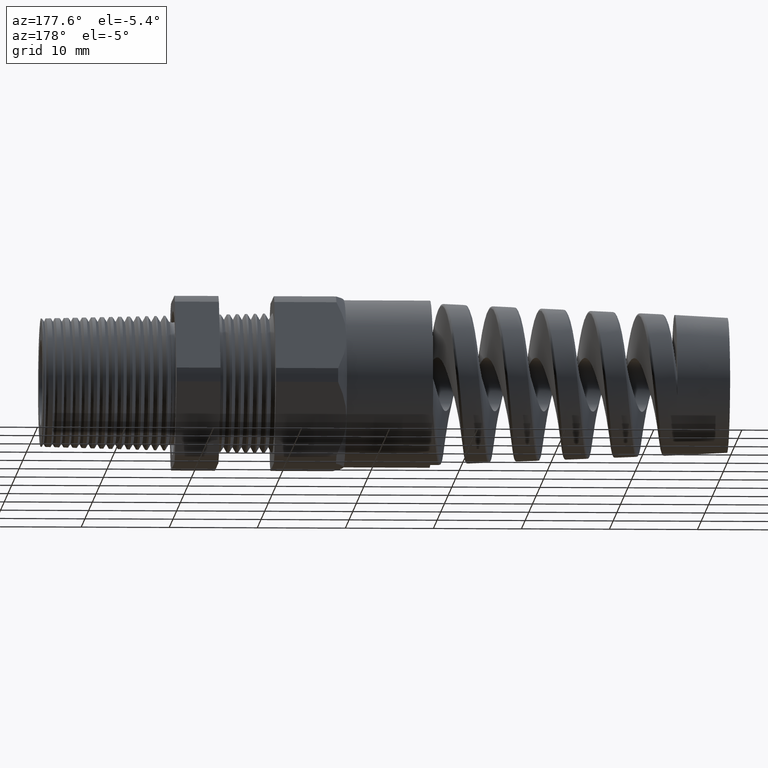
[diagram: clean part render]
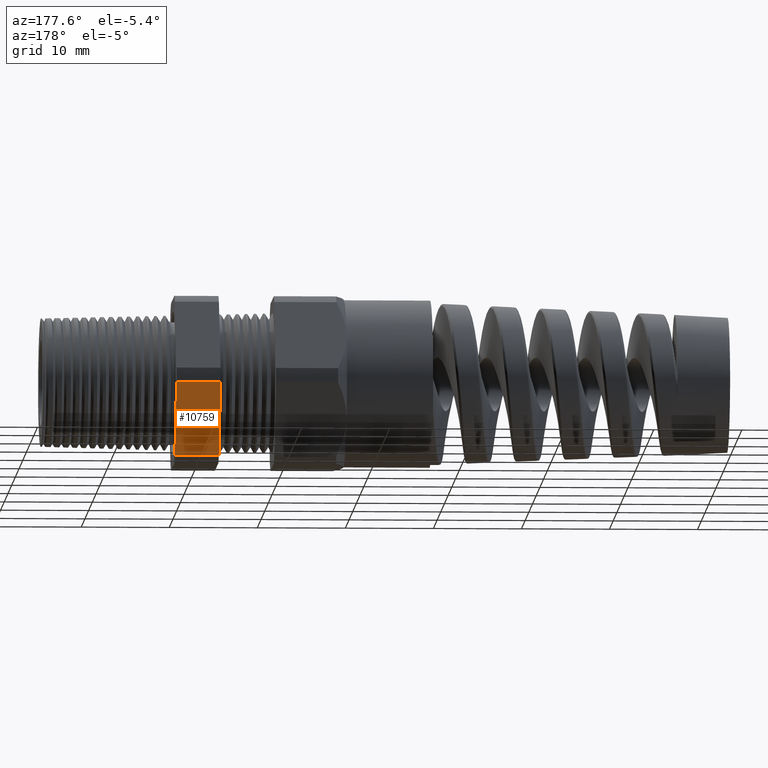
[diagram: same view with one face highlighted and labeled with its STEP entity id]
A machine part, auxiliary view. The second image highlights one B-rep face of the part: STEP entity #10759.
In plain terms, the highlighted planar face has unit normal (0, 0.866, -0.5).
Its self-contained STEP definition (entity closure, byte-faithful):
#32 = VERTEX_POINT ( 'NONE', #962 ) ;
#37 = VERTEX_POINT ( 'NONE', #951 ) ;
#951 = CARTESIAN_POINT ( 'NONE',  ( -0.3100000000000000000, 0.2344281053908204300, -0.3439586107409878200 ) ) ;
#962 = CARTESIAN_POINT ( 'NONE',  ( -0.3100000000000000000, 0.4150909474475088000, -0.03104138925901213400 ) ) ;
#3374 = CARTESIAN_POINT ( 'NONE',  ( -0.5068503937007874400, 0.2344281053908204300, -0.3439586107409878200 ) ) ;
#3380 = DIRECTION ( 'NONE',  ( 0.0000000000000000000, -0.4999999999999998300, -0.8660254037844386000 ) ) ;
#3381 = VECTOR ( 'NONE', #3380, 39.37007874015748900 ) ;
#3382 = CARTESIAN_POINT ( 'NONE',  ( -0.5068503937007874400, 0.5122595264191645000, 0.1372595264191644700 ) ) ;
#3383 = LINE ( 'NONE', #3382, #3381 ) ;
#3385 = CARTESIAN_POINT ( 'NONE',  ( -0.5068503937007874400, 0.4150909474475088000, -0.03104138925901210900 ) ) ;
#4239 = VERTEX_POINT ( 'NONE', #3385 ) ;
#4246 = EDGE_CURVE ( 'NONE', #4239, #4248, #3383, .T. ) ;
#4248 = VERTEX_POINT ( 'NONE', #3374 ) ;
#5108 = DIRECTION ( 'NONE',  ( -1.000000000000000000, 0.0000000000000000000, 0.0000000000000000000 ) ) ;
#5109 = VECTOR ( 'NONE', #5108, 39.37007874015748100 ) ;
#5110 = CARTESIAN_POINT ( 'NONE',  ( 0.2800000000000000300, 0.4150909474475088000, -0.03104138925901210900 ) ) ;
#5115 = LINE ( 'NONE', #5110, #5109 ) ;
#5230 = DIRECTION ( 'NONE',  ( -1.000000000000000000, 0.0000000000000000000, 0.0000000000000000000 ) ) ;
#5231 = VECTOR ( 'NONE', #5230, 39.37007874015748100 ) ;
#5232 = CARTESIAN_POINT ( 'NONE',  ( 0.2800000000000000300, 0.2344281053908204300, -0.3439586107409878200 ) ) ;
#5233 = LINE ( 'NONE', #5232, #5231 ) ;
#5234 = DIRECTION ( 'NONE',  ( 0.0000000000000000000, 0.4999999999999998300, 0.8660254037844386000 ) ) ;
#5235 = DIRECTION ( 'NONE',  ( 0.0000000000000000000, 0.8660254037844387100, -0.4999999999999998900 ) ) ;
#5236 = CARTESIAN_POINT ( 'NONE',  ( 0.2800000000000000300, 0.4150909474475088000, -0.03104138925901210900 ) ) ;
#5237 = AXIS2_PLACEMENT_3D ( 'NONE', #5236, #5235, #5234 ) ;
#5239 = PLANE ( 'NONE',  #5237 ) ;
#5240 = FACE_OUTER_BOUND ( 'NONE', #10758, .T. ) ;
#6581 = DIRECTION ( 'NONE',  ( 0.0000000000000000000, 0.4999999999999998300, 0.8660254037844386000 ) ) ;
#6582 = VECTOR ( 'NONE', #6581, 39.37007874015748900 ) ;
#6583 = CARTESIAN_POINT ( 'NONE',  ( -0.3100000000000000000, 0.5122595264191645000, 0.1372595264191644700 ) ) ;
#6584 = LINE ( 'NONE', #6583, #6582 ) ;
#10564 = EDGE_CURVE ( 'NONE', #37, #32, #6584, .T. ) ;
#10669 = EDGE_CURVE ( 'NONE', #32, #4239, #5115, .T. ) ;
#10758 = EDGE_LOOP ( 'NONE', ( #10768, #10769, #10771, #10773 ) ) ;
#10759 = ADVANCED_FACE ( 'NONE', ( #5240 ), #5239, .T. ) ;
#10765 = EDGE_CURVE ( 'NONE', #37, #4248, #5233, .T. ) ;
#10768 = ORIENTED_EDGE ( 'NONE', *, *, #10765, .T. ) ;
#10769 = ORIENTED_EDGE ( 'NONE', *, *, #4246, .F. ) ;
#10771 = ORIENTED_EDGE ( 'NONE', *, *, #10669, .F. ) ;
#10773 = ORIENTED_EDGE ( 'NONE', *, *, #10564, .F. ) ;